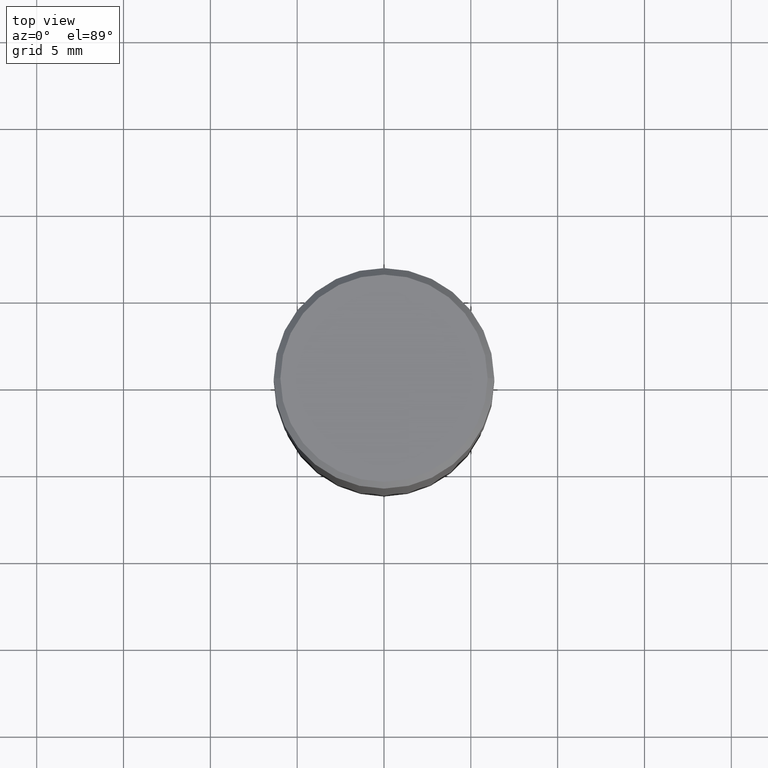
[diagram: clean part render]
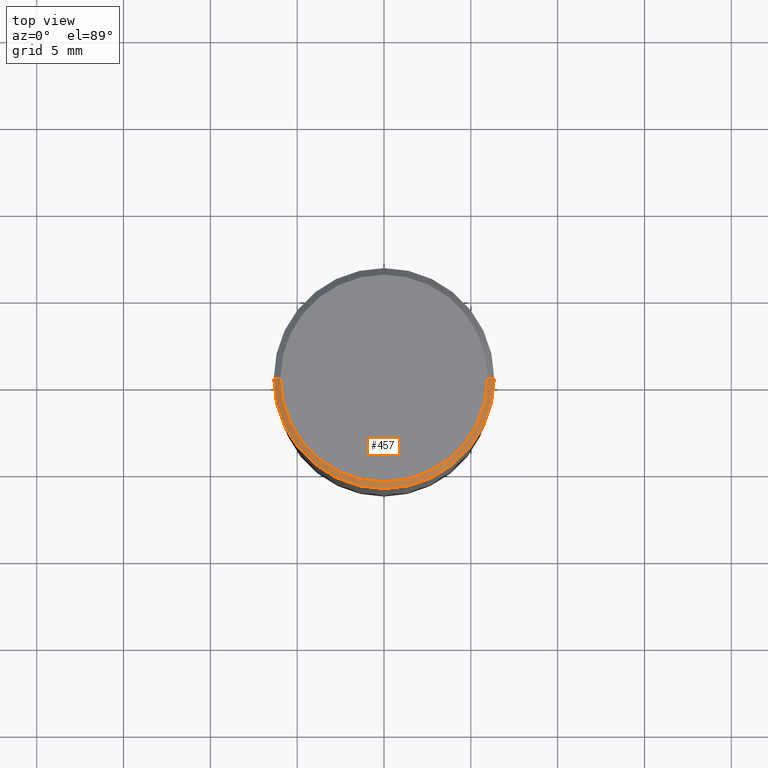
[diagram: same view with one face highlighted and labeled with its STEP entity id]
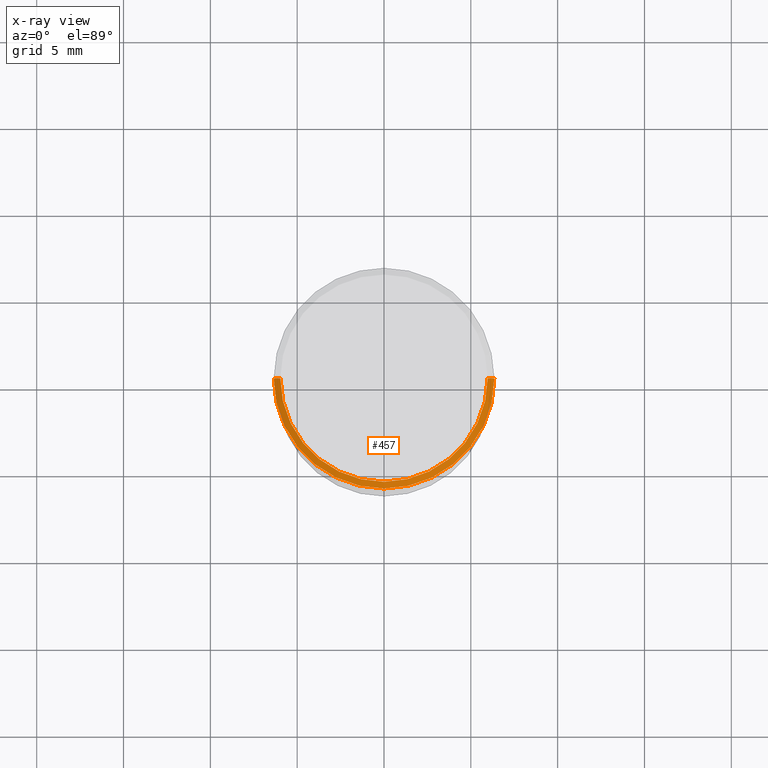
[diagram: x-ray of the same camera — body ghosted, the highlighted face saturated]
A machine part, top view. The second image highlights one B-rep face of the part: STEP entity #457.
The next image is the same camera in x-ray: the body ghosted, the highlighted face saturated — about 0% of this face is hidden behind the body in this view.
In plain terms, the highlighted conical surface has half-angle 45 deg.
Its self-contained STEP definition (entity closure, byte-faithful):
#32 = ORIENTED_EDGE ( 'NONE', *, *, #259, .T. ) ;
#45 = DIRECTION ( 'NONE',  ( 2.445468806185136597E-29, -3.491481338843145583E-15, -1.000000000000000000 ) ) ;
#78 = ORIENTED_EDGE ( 'NONE', *, *, #323, .F. ) ;
#92 = DIRECTION ( 'NONE',  ( 1.000000000000000000, -6.982962677686267499E-15, 4.878549297894958458E-29 ) ) ;
#114 = CIRCLE ( 'NONE', #215, 0.2500000000000000000 ) ;
#118 = DIRECTION ( 'NONE',  ( -1.000000000000000000, 6.982962677686266711E-15, 0.000000000000000000 ) ) ;
#130 = CARTESIAN_POINT ( 'NONE',  ( -0.2500000000000000000, 1.693368449338919401E-15, -0.01499999999999999944 ) ) ;
#131 = AXIS2_PLACEMENT_3D ( 'NONE', #237, #45, #118 ) ;
#134 = CARTESIAN_POINT ( 'NONE',  ( -0.2349999999999999867, 1.667182339297596256E-15, 1.568636843340762393E-16 ) ) ;
#136 = ORIENTED_EDGE ( 'NONE', *, *, #330, .F. ) ;
#138 = CARTESIAN_POINT ( 'NONE',  ( -0.2500000000000000000, 9.455763057682970257E-16, -0.01499999999999999944 ) ) ;
#162 = CARTESIAN_POINT ( 'NONE',  ( 3.668203209277705088E-31, -5.237222008264718399E-17, -0.01499999999999999944 ) ) ;
#180 = VERTEX_POINT ( 'NONE', #435 ) ;
#208 = DIRECTION ( 'NONE',  ( 0.7071067811865441310, -7.319954787623245001E-15, -0.7071067811865509034 ) ) ;
#215 = AXIS2_PLACEMENT_3D ( 'NONE', #162, #306, #449 ) ;
#237 = CARTESIAN_POINT ( 'NONE',  ( 3.668203209277705088E-31, -5.237222008264718399E-17, -0.01499999999999999944 ) ) ;
#238 = DIRECTION ( 'NONE',  ( -2.445468806185136597E-29, 3.491481338843145583E-15, 1.000000000000000000 ) ) ;
#240 = LINE ( 'NONE', #311, #444 ) ;
#245 = LINE ( 'NONE', #130, #356 ) ;
#253 = VERTEX_POINT ( 'NONE', #278 ) ;
#259 = EDGE_CURVE ( 'NONE', #360, #302, #245, .T. ) ;
#271 = FACE_OUTER_BOUND ( 'NONE', #281, .T. ) ;
#278 = CARTESIAN_POINT ( 'NONE',  ( 0.2500000000000000000, -1.798112889504214151E-15, -0.01499999999999999944 ) ) ;
#281 = EDGE_LOOP ( 'NONE', ( #78, #136, #32, #452 ) ) ;
#302 = VERTEX_POINT ( 'NONE', #138 ) ;
#306 = DIRECTION ( 'NONE',  ( -2.445468806185136597E-29, 3.491481338843145583E-15, 1.000000000000000000 ) ) ;
#311 = CARTESIAN_POINT ( 'NONE',  ( 0.2500000000000000000, -1.767496719525530167E-15, -0.01499999999999999944 ) ) ;
#315 = DIRECTION ( 'NONE',  ( -0.7071067811865441310, 2.468850131082221167E-15, -0.7071067811865509034 ) ) ;
#323 = EDGE_CURVE ( 'NONE', #180, #253, #240, .T. ) ;
#330 = EDGE_CURVE ( 'NONE', #360, #180, #410, .T. ) ;
#331 = CONICAL_SURFACE ( 'NONE', #131, 0.2500000000000000000, 0.7853981633974435050 ) ;
#356 = VECTOR ( 'NONE', #315, 39.37007874015748143 ) ;
#360 = VERTEX_POINT ( 'NONE', #134 ) ;
#361 = AXIS2_PLACEMENT_3D ( 'NONE', #456, #238, #92 ) ;
#410 = CIRCLE ( 'NONE', #361, 0.2349999999999999867 ) ;
#435 = CARTESIAN_POINT ( 'NONE',  ( 0.2349999999999999867, -1.689856874500919833E-15, 1.568636843340994368E-16 ) ) ;
#442 = EDGE_CURVE ( 'NONE', #302, #253, #114, .T. ) ;
#444 = VECTOR ( 'NONE', #208, 39.37007874015748143 ) ;
#449 = DIRECTION ( 'NONE',  ( 1.000000000000000000, -6.982962677686266711E-15, 0.000000000000000000 ) ) ;
#452 = ORIENTED_EDGE ( 'NONE', *, *, #442, .T. ) ;
#456 = CARTESIAN_POINT ( 'NONE',  ( -3.836052468622837406E-45, 5.476866265946494270E-31, 1.568636843340877764E-16 ) ) ;
#457 = ADVANCED_FACE ( 'NONE', ( #271 ), #331, .T. ) ;